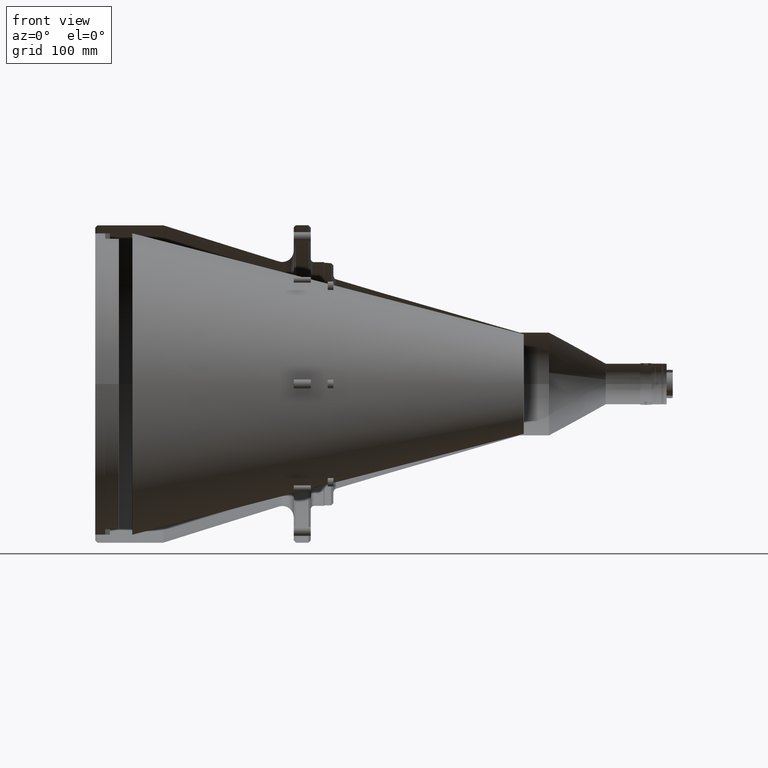
[diagram: clean part render]
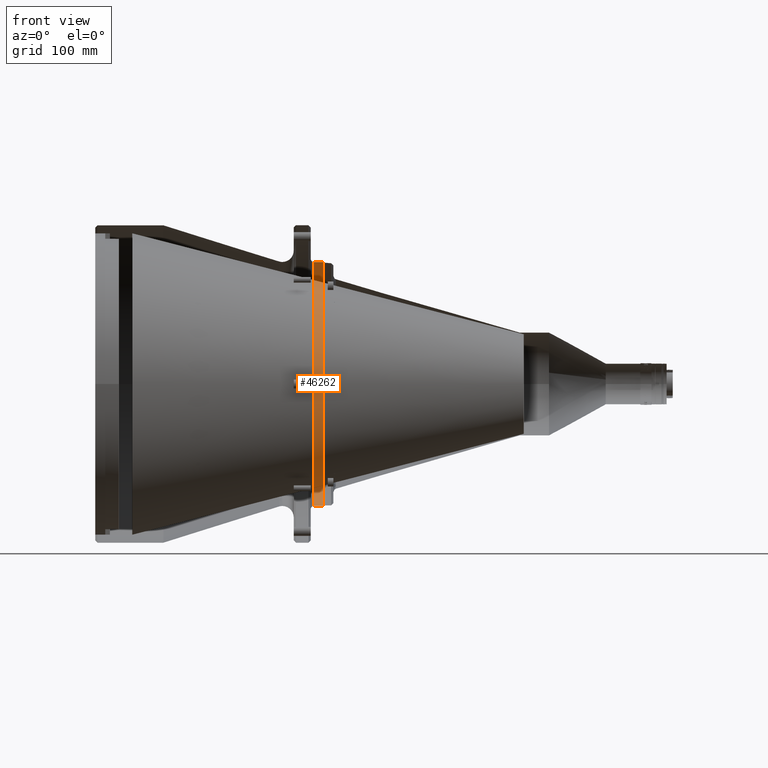
[diagram: same view with one face highlighted and labeled with its STEP entity id]
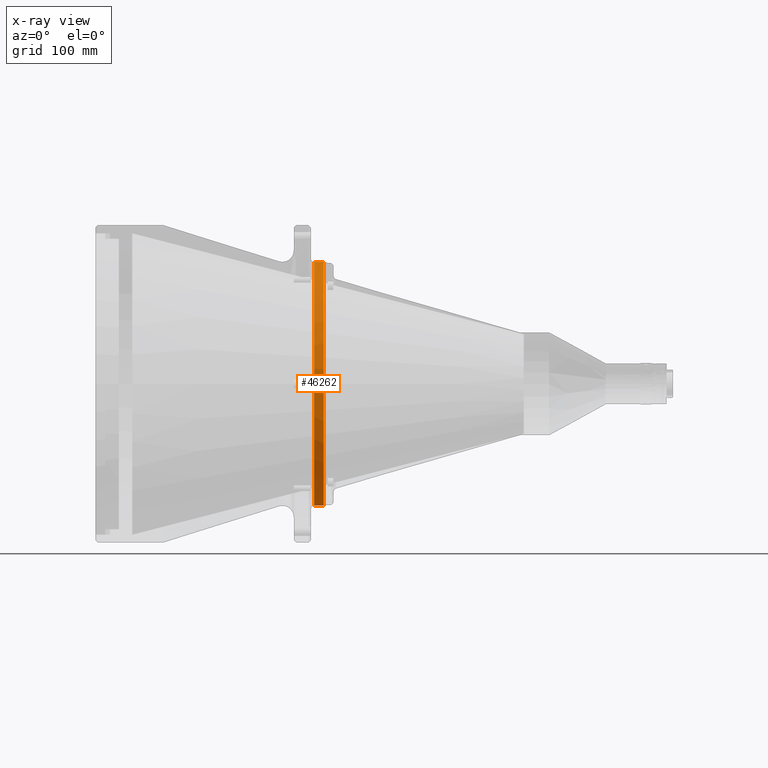
[diagram: x-ray of the same camera — body ghosted, the highlighted face saturated]
A machine part, front view. The second image highlights one B-rep face of the part: STEP entity #46262.
The next image is the same camera in x-ray: the body ghosted, the highlighted face saturated — about 0% of this face is hidden behind the body in this view.
In plain terms, the highlighted cylindrical surface (partial cylindrical patch) has radius 107.5 mm, axis along (1, 0, 0).
Its self-contained STEP definition (entity closure, byte-faithful):
#71 = CARTESIAN_POINT ( 'NONE',  ( 192.9999999997905320, -71.03887568699406074, -80.98908226807060373 ) ) ;
#583 = CARTESIAN_POINT ( 'NONE',  ( 192.9999999997627924, -96.62454324613523227, -47.63875468528519974 ) ) ;
#921 = ORIENTED_EDGE ( 'NONE', *, *, #3486, .T. ) ;
#1263 = CARTESIAN_POINT ( 'NONE',  ( 201.5000000000890168, -66.82076616742303088, 84.46306594419684188 ) ) ;
#1772 = CARTESIAN_POINT ( 'NONE',  ( 201.5000000000889884, -44.48482234496760412, 98.08223529686775066 ) ) ;
#2027 = CARTESIAN_POINT ( 'NONE',  ( 201.5000000000890452, -107.5647464523421490, 5.371184278019268454 ) ) ;
#3026 = CARTESIAN_POINT ( 'NONE',  ( 201.5000000000890168, -29.97825015634005297, -103.4423937149688868 ) ) ;
#3394 = VERTEX_POINT ( 'NONE', #27545 ) ;
#3486 = EDGE_CURVE ( 'NONE', #25688, #18511, #17954, .T. ) ;
#3691 = CARTESIAN_POINT ( 'NONE',  ( 192.9999999997834266, -96.62454324706946807, 47.63875468333152696 ) ) ;
#4444 = VERTEX_POINT ( 'NONE', #33851 ) ;
#4470 = CARTESIAN_POINT ( 'NONE',  ( 192.9999999998025260, -85.47406975086512659, 65.57390262679987813 ) ) ;
#5160 = CARTESIAN_POINT ( 'NONE',  ( 201.5000000000890168, -61.54841124399059282, 88.37882876139111943 ) ) ;
#5933 = CARTESIAN_POINT ( 'NONE',  ( 201.5000000000889600, -76.56734824563540087, 75.73945789697638986 ) ) ;
#6256 = CARTESIAN_POINT ( 'NONE',  ( 201.5000000008305108, 9.999853658077630733E-10, -107.5000000007764100 ) ) ;
#6435 = CARTESIAN_POINT ( 'NONE',  ( 201.5000000000889600, -91.32558660500880876, -57.08468736153290735 ) ) ;
#8369 = CARTESIAN_POINT ( 'NONE',  ( 192.9999999997583870, -102.0095562430808087, -34.63818327477422088 ) ) ;
#10078 = CARTESIAN_POINT ( 'NONE',  ( 201.5000000000890168, -105.6864600255994873, -20.72188377454461516 ) ) ;
#10618 = B_SPLINE_CURVE_WITH_KNOTS ( 'NONE', 3,
 ( #27565, #31219, #11485, #51191, #23138, #19259, #47055, #11735, #43412, #47307, #4470, #35123, #3691, #20025, #50939, #15611, #48069, #39007, #12493, #15863, #8369, #583, #23649, #31477, #39510, #71, #16376, #47559, #11983, #27820, #24169, #43670, #23903, #39769 ),
 .UNSPECIFIED., .F., .F.,
 ( 4, 2, 2, 2, 2, 2, 2, 2, 2, 2, 2, 2, 2, 2, 2, 2, 4 ),
 ( 0.000000000000000000, 0.06250000000000001388, 0.1250000000000000000, 0.1874999999999999722, 0.2499999999999999722, 0.3124999999999999445, 0.3749999999999999445, 0.4375000000000000000, 0.5000000000000000000, 0.5625000000000000000, 0.6250000000000000000, 0.6875000000000000000, 0.7500000000000000000, 0.8125000000000001110, 0.8750000000000001110, 0.9375000000000001110, 1.000000000000000000 ),
 .UNSPECIFIED. ) ;
#10708 = EDGE_CURVE ( 'NONE', #3394, #4444, #10618, .T. ) ;
#11007 = CARTESIAN_POINT ( 'NONE',  ( 201.5000000000889884, -7.930434184037065570, -107.5000000001257376 ) ) ;
#11485 = CARTESIAN_POINT ( 'NONE',  ( 192.9999999999089084, -14.07154312064334789, 106.8070455527237357 ) ) ;
#11735 = CARTESIAN_POINT ( 'NONE',  ( 192.9999999998339888, -65.57390262923568969, 85.47406974901466015 ) ) ;
#11983 = CARTESIAN_POINT ( 'NONE',  ( 192.9999999998191527, -47.63875468420047099, -96.62454324673942097 ) ) ;
#12493 = CARTESIAN_POINT ( 'NONE',  ( 192.9999999997562270, -106.8070455527834923, -14.07154311973341443 ) ) ;
#13945 = CARTESIAN_POINT ( 'NONE',  ( 201.5000000000890168, -32.26626030310291071, 102.7517043456957850 ) ) ;
#15486 = CYLINDRICAL_SURFACE ( 'NONE', #31464, 107.5000000000629967 ) ;
#15611 = CARTESIAN_POINT ( 'NONE',  ( 192.9999999997623945, -106.8070455530594671, 14.07154311758005427 ) ) ;
#15863 = CARTESIAN_POINT ( 'NONE',  ( 192.9999999997569944, -104.0617897334524855, -27.87287611562544498 ) ) ;
#16376 = CARTESIAN_POINT ( 'NONE',  ( 192.9999999997971258, -65.57390262755946253, -85.47406975035934806 ) ) ;
#17071 = CARTESIAN_POINT ( 'NONE',  ( 201.5000000000889884, -104.8031833936616266, 24.80558506581108347 ) ) ;
#17589 = CARTESIAN_POINT ( 'NONE',  ( 201.5000000000890168, -92.56981150647325762, 55.04411228782671373 ) ) ;
#17954 = B_SPLINE_CURVE_WITH_KNOTS ( 'NONE', 3,
 ( #41493, #44624, #24858, #40712, #13945, #1772, #25372, #5160, #1263, #5933, #45138, #41229, #17589, #33451, #20968, #17071, #49271, #2027, #29796, #45649, #10078, #25894, #41748, #26653, #6435, #49789, #50294, #18587, #27162, #22238, #30553, #22488, #3026, #43010 ),
 .UNSPECIFIED., .F., .F.,
 ( 4, 2, 2, 2, 2, 2, 2, 2, 2, 2, 2, 2, 2, 2, 2, 2, 4 ),
 ( 0.000000000000000000, 0.05809708906534187534, 0.1161941781306837507, 0.1742912671960256121, 0.2323883562613675013, 0.2904854453267093906, 0.3485825343920512798, 0.4066796234573932245, 0.4647767125227352247, 0.5228738015880770584, 0.5809708906534190032, 0.6390679797187608369, 0.6971650687841026706, 0.7552621578494445043, 0.8133592469147864490, 0.8714563359801283937, 0.9295534250454702274 ),
 .UNSPECIFIED. ) ;
#18511 = VERTEX_POINT ( 'NONE', #39551 ) ;
#18587 = CARTESIAN_POINT ( 'NONE',  ( 201.5000000000890168, -70.04657891103856571, -81.80770796676604562 ) ) ;
#19259 = CARTESIAN_POINT ( 'NONE',  ( 192.9999999998608473, -47.63875468609533215, 96.62454324574650855 ) ) ;
#20025 = CARTESIAN_POINT ( 'NONE',  ( 192.9999999997733369, -102.0095562437601302, 34.63818327271494013 ) ) ;
#20968 = CARTESIAN_POINT ( 'NONE',  ( 201.5000000000889884, -101.0230378875838682, 37.32787317628593371 ) ) ;
#21118 = DIRECTION ( 'NONE',  ( 1.000000000000000000, 0.000000000000000000, 0.000000000000000000 ) ) ;
#22238 = CARTESIAN_POINT ( 'NONE',  ( 201.5000000000890168, -54.03453051423181108, -93.16272759008295168 ) ) ;
#22488 = CARTESIAN_POINT ( 'NONE',  ( 201.5000000000890452, -36.22744300744889756, -101.4228607024103468 ) ) ;
#23138 = CARTESIAN_POINT ( 'NONE',  ( 192.9999999998797762, -34.63818327563712529, 102.0095562428195279 ) ) ;
#23649 = CARTESIAN_POINT ( 'NONE',  ( 192.9999999997660609, -93.29189689461944113, -53.87369747190014380 ) ) ;
#23903 = CARTESIAN_POINT ( 'NONE',  ( 192.9999999998721023, -7.035858546954115944, -107.5000000000886899 ) ) ;
#24169 = CARTESIAN_POINT ( 'NONE',  ( 192.9999999998445332, -27.87287611446775060, -104.0617897338627813 ) ) ;
#24858 = CARTESIAN_POINT ( 'NONE',  ( 201.5000000000890168, -13.08029205248161908, 106.9014979301699952 ) ) ;
#25372 = CARTESIAN_POINT ( 'NONE',  ( 201.5000000000889600, -50.38033621699911890, 95.18847631176760160 ) ) ;
#25688 = VERTEX_POINT ( 'NONE', #27746 ) ;
#25894 = CARTESIAN_POINT ( 'NONE',  ( 201.5000000000890168, -102.3948651413491291, -33.38137044213255678 ) ) ;
#26237 = DIRECTION ( 'NONE',  ( 1.000000000000000000, 0.000000000000000000, 0.000000000000000000 ) ) ;
#26653 = CARTESIAN_POINT ( 'NONE',  ( 201.5000000000890452, -94.63516537755720037, -51.41215589600003710 ) ) ;
#26664 = CARTESIAN_POINT ( 'NONE',  ( 197.2500000004999947, -3.519617668813089479E-14, -6.272315999922279221E-11 ) ) ;
#26711 = EDGE_CURVE ( 'NONE', #18511, #45769, #50256, .T. ) ;
#26741 = LINE ( 'NONE', #35065, #28963 ) ;
#27162 = CARTESIAN_POINT ( 'NONE',  ( 201.5000000000890168, -64.93007344708493633, -85.92502465564206204 ) ) ;
#27545 = CARTESIAN_POINT ( 'NONE',  ( 193.0000000002060005, -1.964130387255570030E-09, 107.5000000000199947 ) ) ;
#27565 = CARTESIAN_POINT ( 'NONE',  ( 193.0000000002060005, -1.964130387255570030E-09, 107.5000000000199947 ) ) ;
#27746 = CARTESIAN_POINT ( 'NONE',  ( 201.5000000003500134, -3.999986346924184347E-09, 107.5000000002609966 ) ) ;
#27820 = CARTESIAN_POINT ( 'NONE',  ( 192.9999999998357225, -34.63818327363666327, -102.0095562435574834 ) ) ;
#27886 = ORIENTED_EDGE ( 'NONE', *, *, #10708, .F. ) ;
#28963 = VECTOR ( 'NONE', #26237, 1000.000000000000000 ) ;
#29726 = CARTESIAN_POINT ( 'NONE',  ( 201.5000000000889884, -15.86055201529953607, -106.6188757966629623 ) ) ;
#29796 = CARTESIAN_POINT ( 'NONE',  ( 201.5000000000890168, -107.6921366179847297, -1.194993957823927921 ) ) ;
#30484 = CARTESIAN_POINT ( 'NONE',  ( 201.4999999981396002, -23.59756097574439693, -104.8780487824710548 ) ) ;
#30553 = CARTESIAN_POINT ( 'NONE',  ( 201.5000000000890168, -48.25569424423687082, -96.28298018302385231 ) ) ;
#31219 = CARTESIAN_POINT ( 'NONE',  ( 192.9999999999186286, -7.035858549062316669, 107.4999999998920401 ) ) ;
#31346 = DIRECTION ( 'NONE',  ( 1.000000000000000000, 0.000000000000000000, 0.000000000000000000 ) ) ;
#31464 = AXIS2_PLACEMENT_3D ( 'NONE', #26664, #31346, #47178 ) ;
#31477 = CARTESIAN_POINT ( 'NONE',  ( 192.9999999997742464, -85.47406974957917214, -65.57390262853478191 ) ) ;
#33451 = CARTESIAN_POINT ( 'NONE',  ( 201.5000000000889600, -98.56003529572393518, 43.41593880599582178 ) ) ;
#33851 = CARTESIAN_POINT ( 'NONE',  ( 193.0000000003415153, 2.702453454497094965E-09, -107.5000000001133884 ) ) ;
#35065 = CARTESIAN_POINT ( 'NONE',  ( 197.2500000004999947, -4.000000000000008521E-09, 107.5000000000002700 ) ) ;
#35123 = CARTESIAN_POINT ( 'NONE',  ( 192.9999999997893383, -93.29189689567591870, 53.87369747001191911 ) ) ;
#36985 = EDGE_LOOP ( 'NONE', ( #46791, #27886, #37469, #921, #42151 ) ) ;
#37469 = ORIENTED_EDGE ( 'NONE', *, *, #51278, .T. ) ;
#39007 = CARTESIAN_POINT ( 'NONE',  ( 192.9999999997568239, -107.4999999998827889, -7.035858548145551339 ) ) ;
#39510 = CARTESIAN_POINT ( 'NONE',  ( 192.9999999997792202, -80.98908226723679604, -71.03887568792549700 ) ) ;
#39551 = CARTESIAN_POINT ( 'NONE',  ( 201.4999999981396002, -23.59756097574439693, -104.8780487824710548 ) ) ;
#39769 = CARTESIAN_POINT ( 'NONE',  ( 193.0000000003415153, 2.702453454497094965E-09, -107.5000000001133884 ) ) ;
#40712 = CARTESIAN_POINT ( 'NONE',  ( 201.5000000000889884, -25.94343776326484630, 104.5273281822330631 ) ) ;
#41161 = EDGE_CURVE ( 'NONE', #4444, #45769, #50750, .T. ) ;
#41229 = CARTESIAN_POINT ( 'NONE',  ( 201.5000000000890168, -89.04270092554943972, 60.58400541216573743 ) ) ;
#41493 = CARTESIAN_POINT ( 'NONE',  ( 201.5000000003500134, -3.999986346924184347E-09, 107.5000000002609966 ) ) ;
#41748 = CARTESIAN_POINT ( 'NONE',  ( 201.5000000000890168, -100.1698557479829645, -39.56038800794316757 ) ) ;
#42151 = ORIENTED_EDGE ( 'NONE', *, *, #26711, .T. ) ;
#43010 = CARTESIAN_POINT ( 'NONE',  ( 201.4999999981396002, -23.59756097574439693, -104.8780487824710548 ) ) ;
#43280 = FACE_OUTER_BOUND ( 'NONE', #36985, .T. ) ;
#43412 = CARTESIAN_POINT ( 'NONE',  ( 192.9999999998255760, -71.03887568858239376, 80.98908226661873755 ) ) ;
#43670 = CARTESIAN_POINT ( 'NONE',  ( 192.9999999998626947, -14.07154311854880469, -106.8070455530583871 ) ) ;
#43916 = VECTOR ( 'NONE', #21118, 1000.000000000000000 ) ;
#44524 = CARTESIAN_POINT ( 'NONE',  ( 197.2500000004999947, 3.999916442693541859E-09, -107.5000000001257376 ) ) ;
#44624 = CARTESIAN_POINT ( 'NONE',  ( 201.5000000000890168, -6.540206414520617351, 107.4999999997569518 ) ) ;
#45138 = CARTESIAN_POINT ( 'NONE',  ( 201.5000000000890168, -81.04139541841260552, 70.93177375854465083 ) ) ;
#45582 = CARTESIAN_POINT ( 'NONE',  ( 201.5000000008305108, 9.999853658077630733E-10, -107.5000000007764100 ) ) ;
#45649 = CARTESIAN_POINT ( 'NONE',  ( 201.5000000000890168, -106.7529847333460680, -14.24164844494971049 ) ) ;
#45769 = VERTEX_POINT ( 'NONE', #6256 ) ;
#46262 = ADVANCED_FACE ( 'NONE', ( #43280 ), #15486, .F. ) ;
#46791 = ORIENTED_EDGE ( 'NONE', *, *, #41161, .F. ) ;
#47055 = CARTESIAN_POINT ( 'NONE',  ( 192.9999999998516103, -53.87369747267764097, 93.29189689416956810 ) ) ;
#47178 = DIRECTION ( 'NONE',  ( 0.000000000000000000, -3.720897491926489382E-11, 1.000000000000000000 ) ) ;
#47307 = CARTESIAN_POINT ( 'NONE',  ( 192.9999999998098588, -80.98908226862994297, 71.03887568627843052 ) ) ;
#47559 = CARTESIAN_POINT ( 'NONE',  ( 192.9999999998113651, -53.87369747084807869, -93.29189689528483598 ) ) ;
#48069 = CARTESIAN_POINT ( 'NONE',  ( 192.9999999997598366, -107.5000000000207905, 7.035858545978695311 ) ) ;
#49271 = CARTESIAN_POINT ( 'NONE',  ( 201.5000000000890168, -106.1202565030850167, 18.37159382369723559 ) ) ;
#49789 = CARTESIAN_POINT ( 'NONE',  ( 201.5000000000890452, -83.73166439230305969, -67.73501810739396944 ) ) ;
#50256 = B_SPLINE_CURVE_WITH_KNOTS ( 'NONE', 3,
 ( #30484, #29726, #11007, #45582 ),
 .UNSPECIFIED., .F., .F.,
 ( 4, 4 ),
 ( 0.9295534250454702274, 1.000000000000000000 ),
 .UNSPECIFIED. ) ;
#50294 = CARTESIAN_POINT ( 'NONE',  ( 201.5000000000890168, -79.44746118277397784, -72.71262071694648910 ) ) ;
#50750 = LINE ( 'NONE', #44524, #43916 ) ;
#50939 = CARTESIAN_POINT ( 'NONE',  ( 192.9999999997690736, -104.0617897339991202, 27.87287611352591910 ) ) ;
#51191 = CARTESIAN_POINT ( 'NONE',  ( 192.9999999998894680, -27.87287611650845776, 104.0617897332575126 ) ) ;
#51278 = EDGE_CURVE ( 'NONE', #3394, #25688, #26741, .T. ) ;